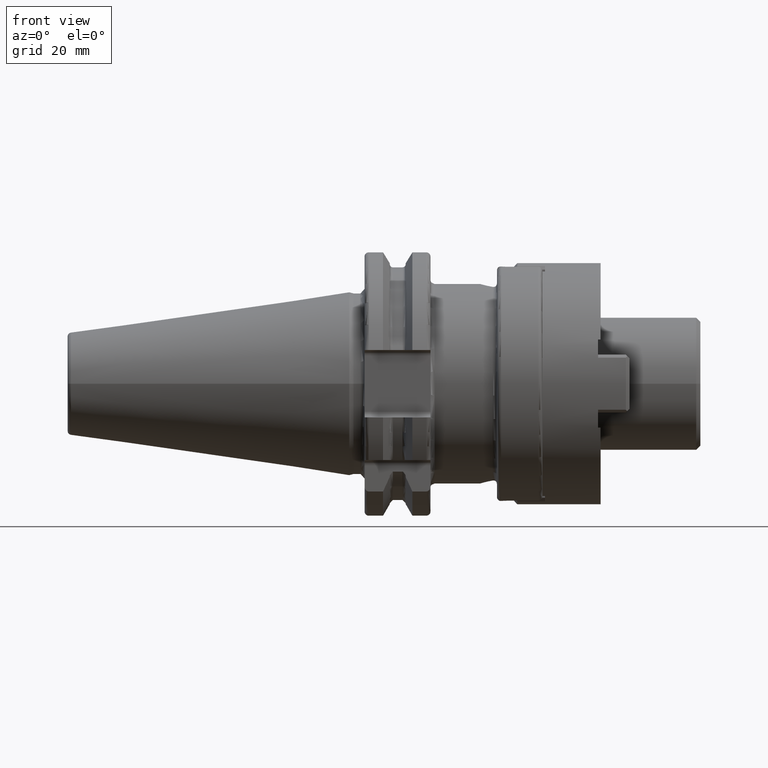
[diagram: clean part render]
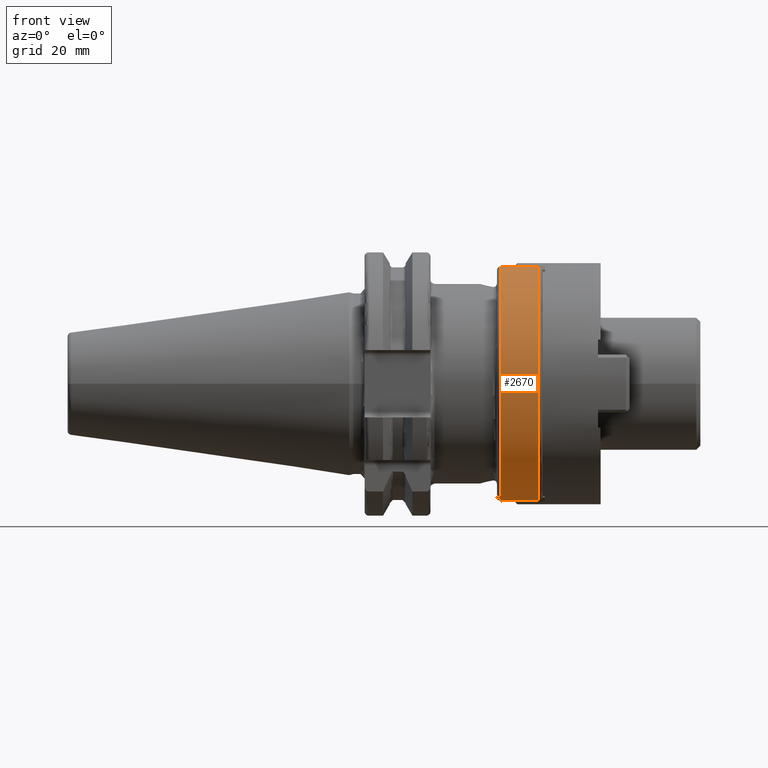
[diagram: same view with one face highlighted and labeled with its STEP entity id]
A machine part, front view. The second image highlights one B-rep face of the part: STEP entity #2670.
In plain terms, the highlighted cylindrical surface (partial cylindrical patch) has radius 29 mm, axis along (1, 0, 0).
Its self-contained STEP definition (entity closure, byte-faithful):
#453=CARTESIAN_POINT('',(3.605E1,-6.760362416321E0,-2.820101948512E1));
#454=CARTESIAN_POINT('',(3.626739731940E1,-6.824677701806E0,-2.818560179290E1));
#455=CARTESIAN_POINT('',(3.670551439900E1,-6.931652192670E0,-2.815950664939E1));
#456=CARTESIAN_POINT('',(3.737691219327E1,-7.028628029756E0,-2.813538042371E1));
#457=CARTESIAN_POINT('',(3.782505065686E1,-7.05E0,-2.813001066477E1));
#458=CARTESIAN_POINT('',(3.805E1,-7.05E0,-2.813001066477E1));
#460=CARTESIAN_POINT('',(3.805E1,-7.05E0,2.813001066477E1));
#461=CARTESIAN_POINT('',(3.782505065686E1,-7.05E0,2.813001066477E1));
#462=CARTESIAN_POINT('',(3.737691219327E1,-7.028628029756E0,2.813538042371E1));
#463=CARTESIAN_POINT('',(3.670551439900E1,-6.931652192670E0,2.815950664939E1));
#464=CARTESIAN_POINT('',(3.626739731940E1,-6.824677701806E0,2.818560179290E1));
#465=CARTESIAN_POINT('',(3.605E1,-6.760362416321E0,2.820101948512E1));
#467=DIRECTION('',(1.E0,0.E0,0.E0));
#468=VECTOR('',#467,6.95E0);
#469=CARTESIAN_POINT('',(3.805E1,-7.05E0,2.813001066477E1));
#470=LINE('',#469,#468);
#471=DIRECTION('',(1.E0,0.E0,0.E0));
#472=VECTOR('',#471,6.95E0);
#473=CARTESIAN_POINT('',(3.805E1,-7.05E0,-2.813001066477E1));
#474=LINE('',#473,#472);
#524=CARTESIAN_POINT('',(3.605E1,0.E0,0.E0));
#525=DIRECTION('',(1.E0,0.E0,0.E0));
#526=DIRECTION('',(0.E0,-2.331159453904E-1,9.724489477627E-1));
#527=AXIS2_PLACEMENT_3D('',#524,#525,#526);
#628=CARTESIAN_POINT('',(4.5E1,0.E0,0.E0));
#629=DIRECTION('',(-1.E0,0.E0,0.E0));
#630=DIRECTION('',(0.E0,-2.431034482759E-1,-9.700003677506E-1));
#631=AXIS2_PLACEMENT_3D('',#628,#629,#630);
#2056=CARTESIAN_POINT('',(3.805E1,-7.05E0,2.813001066477E1));
#2057=VERTEX_POINT('',#2056);
#2096=VERTEX_POINT('',#465);
#2097=CARTESIAN_POINT('',(4.5E1,-7.05E0,2.813001066477E1));
#2098=VERTEX_POINT('',#2097);
#2103=CARTESIAN_POINT('',(3.805E1,-7.05E0,-2.813001066477E1));
#2104=VERTEX_POINT('',#2103);
#2117=VERTEX_POINT('',#453);
#2121=CARTESIAN_POINT('',(4.5E1,-7.05E0,-2.813001066477E1));
#2122=VERTEX_POINT('',#2121);
#2653=CARTESIAN_POINT('',(1.58025E1,0.E0,0.E0));
#2654=DIRECTION('',(1.E0,0.E0,0.E0));
#2655=DIRECTION('',(0.E0,-1.E0,0.E0));
#2656=AXIS2_PLACEMENT_3D('',#2653,#2654,#2655);
#2657=CYLINDRICAL_SURFACE('',#2656,2.9E1);
#2658=ORIENTED_EDGE('',*,*,#2631,.F.);
#2660=ORIENTED_EDGE('',*,*,#2659,.F.);
#2662=ORIENTED_EDGE('',*,*,#2661,.F.);
#2664=ORIENTED_EDGE('',*,*,#2663,.T.);
#2666=ORIENTED_EDGE('',*,*,#2665,.F.);
#2667=ORIENTED_EDGE('',*,*,#2642,.F.);
#2668=EDGE_LOOP('',(#2658,#2660,#2662,#2664,#2666,#2667));
#2669=FACE_OUTER_BOUND('',#2668,.F.);
#2670=ADVANCED_FACE('',(#2669),#2657,.T.);
#459=B_SPLINE_CURVE_WITH_KNOTS('',3,(#453,#454,#455,#456,#457,#458),
.UNSPECIFIED.,.F.,.F.,(4,1,1,4),(0.E0,3.333333333333E-1,6.666666666667E-1,1.E0),
.UNSPECIFIED.);
#466=B_SPLINE_CURVE_WITH_KNOTS('',3,(#460,#461,#462,#463,#464,#465),
.UNSPECIFIED.,.F.,.F.,(4,1,1,4),(0.E0,3.333333333333E-1,6.666666666667E-1,1.E0),
.UNSPECIFIED.);
#528=CIRCLE('',#527,2.9E1);
#632=CIRCLE('',#631,2.9E1);
#2631=EDGE_CURVE('',#2117,#2104,#459,.T.);
#2642=EDGE_CURVE('',#2104,#2122,#474,.T.);
#2659=EDGE_CURVE('',#2096,#2117,#528,.T.);
#2661=EDGE_CURVE('',#2057,#2096,#466,.T.);
#2663=EDGE_CURVE('',#2057,#2098,#470,.T.);
#2665=EDGE_CURVE('',#2122,#2098,#632,.T.);